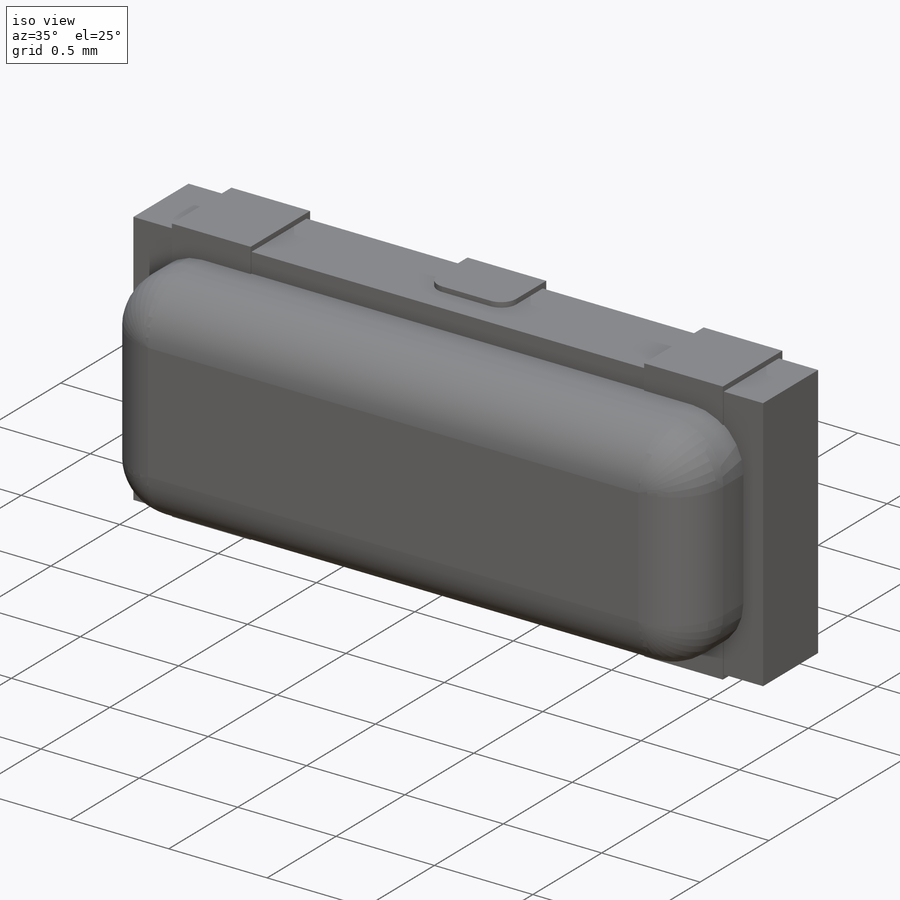
[diagram: iso view]
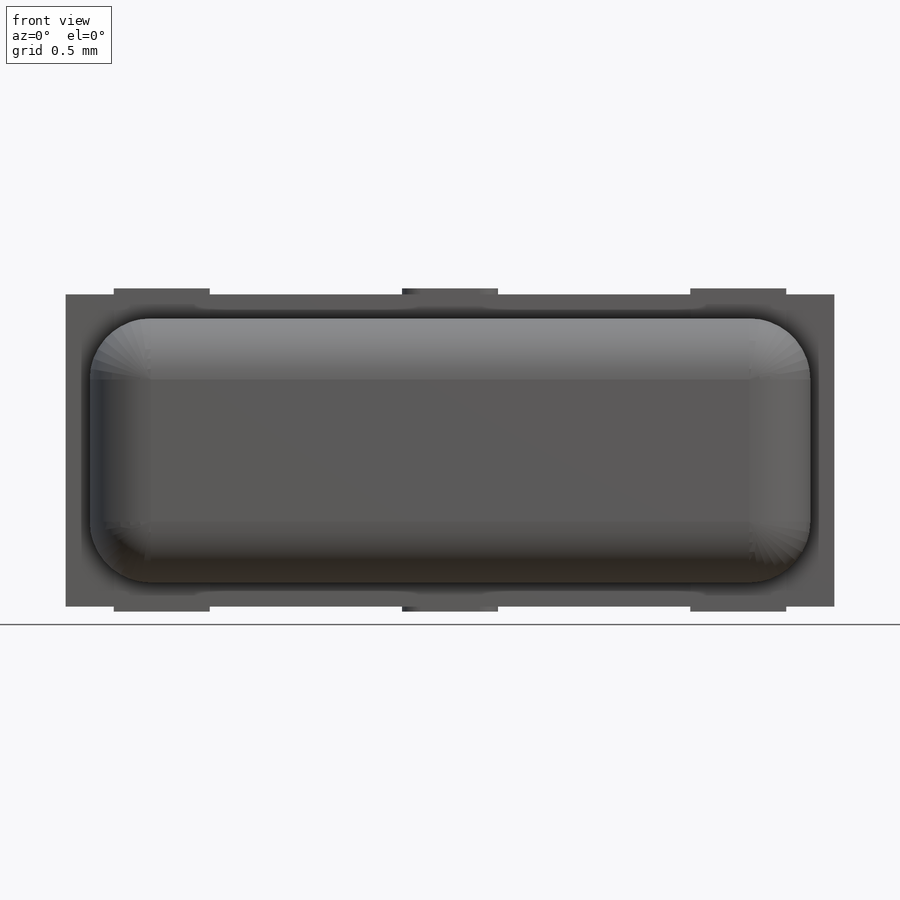
[diagram: front view]
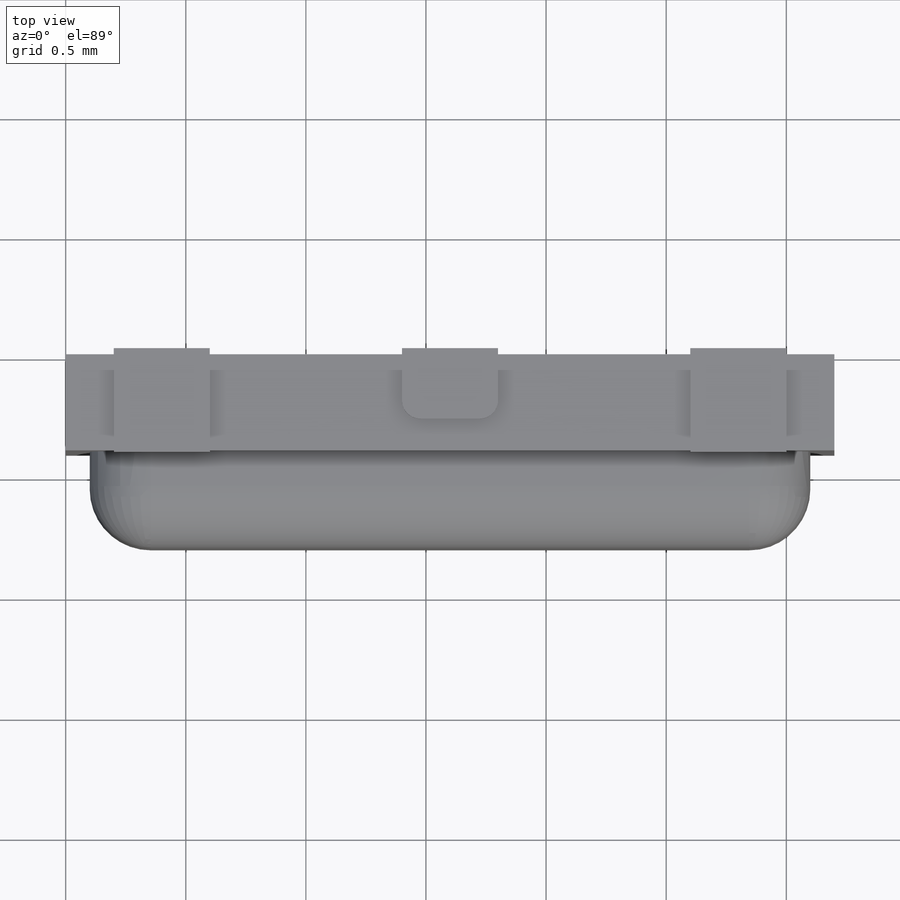
[diagram: top view]
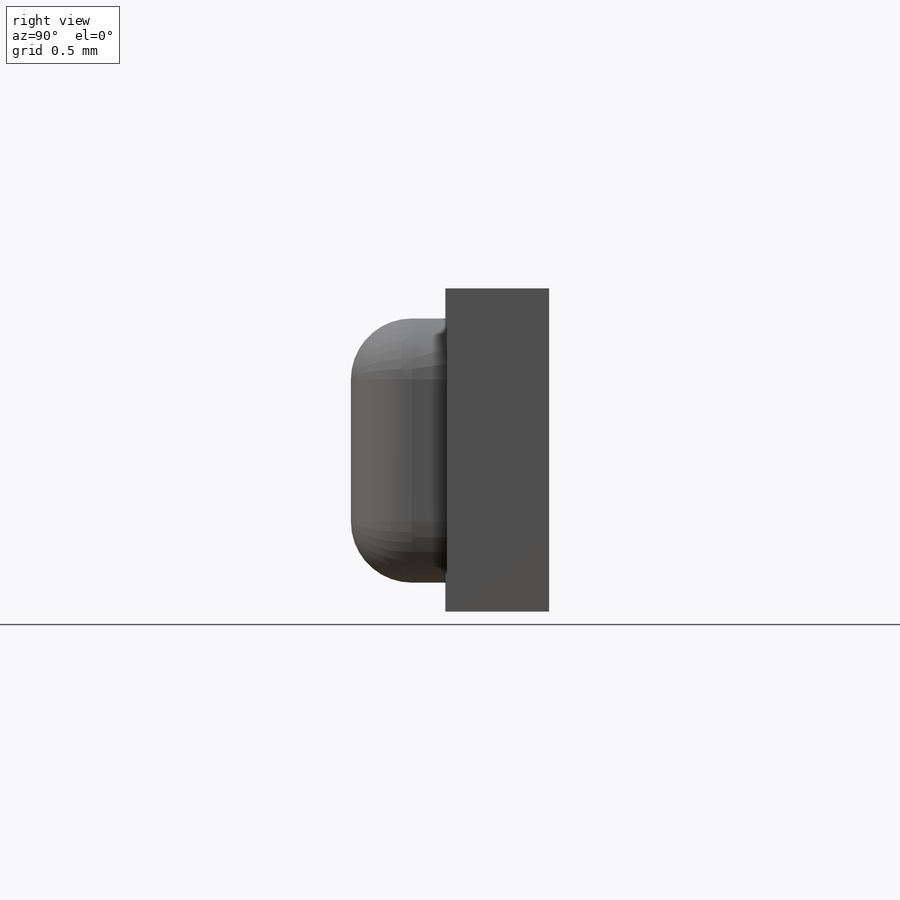
[diagram: right view]
SOLIDWORKS PART (.sldprt)
format: sldprt  version: not decoded by parser v0  size: 284,160 bytes
history: native  units: mm
features: sketch x4, extrude x4, material x1, fillet x1 (+13 scaffold rows collapsed)
feature tree (23):
  scaffold x13  (default folders/planes/origin — collapsed)
  material  "Material <not specified>"
  sketch  "Sketch1"  dims[D1=3.2mm D2=1.3mm]
  extrude  "Boss-Extrude1"  Depth=0.4mm
  sketch  "Sketch2"  dims[c1.D1=1.1mm c1.D2=0.1mm c1.D3=0.1mm c1.D4=0.1mm c1.D5=3.0mm c2.D4=3.0mm]
  extrude  "Boss-Extrude2"  Depth=0.4mm
  fillet  "Fillet1"  Radius=0.254mm
  sketch  "Sketch3"  dims[c1.D1=0.4mm c1.D2=0.4mm c1.D3=0.4mm c1.D4=0.4mm c1.D5=0.8mm c2.D1=0.4mm c2.D5=1.2mm c2.D6=1.2mm]
  extrude  "Boss-Extrude3"  Depth=0.0254mm
  sketch  "Sketch4"  dims[c1.D3=0.0762mm c1.D1=0.4318mm c1.D2=0.4mm c2.D3=0.4mm c2.D4=~0.294104mm]
  extrude  "Boss-Extrude4"  Depth=0.0254mm
decode coverage: 9 of 9 modeling features carry decoded parameters
note: ~ marks probable driven/reference dimensions
note: suppression state not decoded; provenance and decode notes live in map.json
